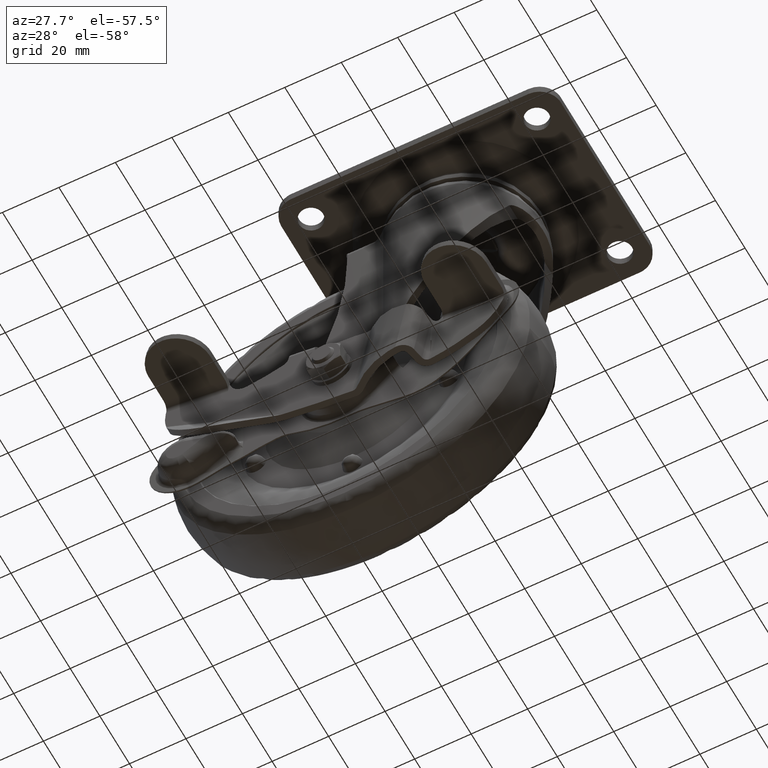
[diagram: clean part render]
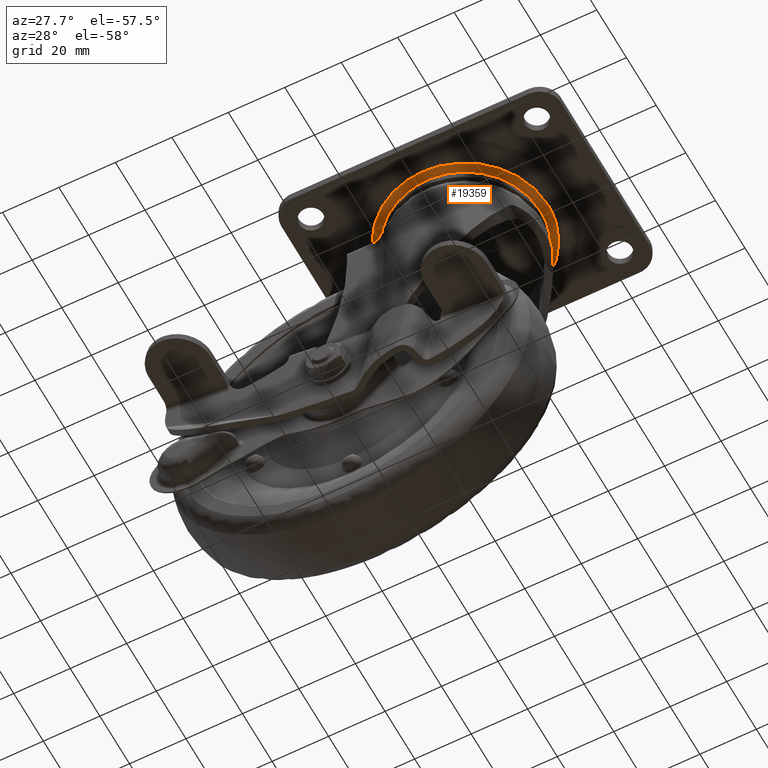
[diagram: same view with one face highlighted and labeled with its STEP entity id]
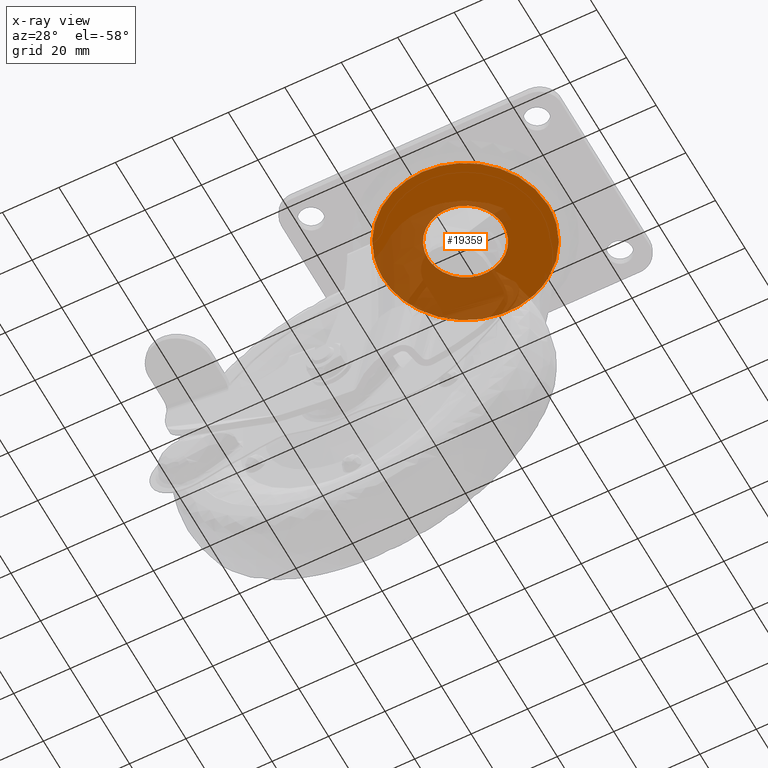
[diagram: x-ray of the same camera — body ghosted, the highlighted face saturated]
A machine part, auxiliary view. The second image highlights one B-rep face of the part: STEP entity #19359.
The next image is the same camera in x-ray: the body ghosted, the highlighted face saturated — about 45% of this face is hidden behind the body in this view.
In plain terms, the highlighted face is a freeform B-spline surface patch.
Its self-contained STEP definition (entity closure, byte-faithful):
#17845=CARTESIAN_POINT('',(-0.814998002985061,-13.325099558920011,-6.373000000000000));
#17846=VERTEX_POINT('',#17845);
#17852=CARTESIAN_POINT('',(-13.350000000000000,0.0,-6.373000000000000));
#17853=VERTEX_POINT('',#17852);
#17854=CARTESIAN_POINT('',(-13.350000000000000,0.0,-6.373000000000000));
#17855=CARTESIAN_POINT('',(-13.350000000000001,-12.558425992823310,-6.372999999999999));
#17856=CARTESIAN_POINT('',(-0.814998002985061,-13.325099558920011,-6.373000000000000));
#17864=(BOUNDED_CURVE()B_SPLINE_CURVE(2,(#17854,#17855,#17856),.UNSPECIFIED.,.F.,.U.)B_SPLINE_CURVE_WITH_KNOTS((3,3),(0.0,0.239332962236925),.UNSPECIFIED.)CURVE()GEOMETRIC_REPRESENTATION_ITEM()RATIONAL_B_SPLINE_CURVE((1.0,0.719603993289074,0.976072041662394))REPRESENTATION_ITEM(''));
#17865=EDGE_CURVE('',#17853,#17846,#17864,.T.);
#17867=CARTESIAN_POINT('',(13.350000000000000,0.0,-6.373000000000000));
#17868=VERTEX_POINT('',#17867);
#17869=CARTESIAN_POINT('',(13.350000000000000,0.0,-6.373000000000000));
#17870=CARTESIAN_POINT('',(13.350000000000000,13.350000000000000,-6.373000000000000));
#17871=CARTESIAN_POINT('',(0.0,13.350000000000000,-6.373000000000000));
#17872=CARTESIAN_POINT('',(-13.350000000000000,13.350000000000000,-6.373000000000000));
#17873=CARTESIAN_POINT('',(-13.350000000000000,0.0,-6.373000000000000));
#17881=(BOUNDED_CURVE()B_SPLINE_CURVE(2,(#17869,#17870,#17871,#17872,#17873),.UNSPECIFIED.,.F.,.U.)B_SPLINE_CURVE_WITH_KNOTS((3,2,3),(0.500000000000000,0.750000000000000,1.0),.UNSPECIFIED.)CURVE()GEOMETRIC_REPRESENTATION_ITEM()RATIONAL_B_SPLINE_CURVE((1.0,0.707106781186548,1.0,0.707106781186548,1.0))REPRESENTATION_ITEM(''));
#17882=EDGE_CURVE('',#17868,#17853,#17881,.T.);
#17884=CARTESIAN_POINT('',(12.497516776657950,-4.694099958155246,-6.372999999999999));
#17885=VERTEX_POINT('',#17884);
#17886=CARTESIAN_POINT('',(12.497516776657953,-4.694099958155246,-6.372999999999999));
#17887=CARTESIAN_POINT('',(13.349999999999998,-2.424458604021889,-6.373000000000000));
#17888=CARTESIAN_POINT('',(13.350000000000000,0.0,-6.373000000000000));
#17896=(BOUNDED_CURVE()B_SPLINE_CURVE(2,(#17886,#17887,#17888),.UNSPECIFIED.,.F.,.U.)B_SPLINE_CURVE_WITH_KNOTS((3,3),(0.440284170898208,0.500000000000000),.UNSPECIFIED.)CURVE()GEOMETRIC_REPRESENTATION_ITEM()RATIONAL_B_SPLINE_CURVE((0.893499554634907,0.930038554401048,1.0))REPRESENTATION_ITEM(''));
#17897=EDGE_CURVE('',#17885,#17868,#17896,.T.);
#17937=CARTESIAN_POINT('',(-0.814998002985061,-13.325099558920016,-6.373000000000001));
#17938=CARTESIAN_POINT('',(-0.407879390231432,-13.349999999999998,-6.373000000000001));
#17939=CARTESIAN_POINT('',(0.0,-13.350000000000000,-6.373000000000000));
#17940=CARTESIAN_POINT('',(9.246338102476596,-13.350000000000007,-6.373000000000000));
#17941=CARTESIAN_POINT('',(12.497516776657950,-4.694099958155247,-6.372999999999999));
#17949=(BOUNDED_CURVE()B_SPLINE_CURVE(2,(#17937,#17938,#17939,#17940,#17941),.UNSPECIFIED.,.F.,.U.)B_SPLINE_CURVE_WITH_KNOTS((3,2,3),(0.239332962236925,0.250000000000000,0.440284170898207),.UNSPECIFIED.)CURVE()GEOMETRIC_REPRESENTATION_ITEM()RATIONAL_B_SPLINE_CURVE((0.976072041662394,0.987502787897474,1.0,0.777068226785500,0.893499554634906))REPRESENTATION_ITEM(''));
#17950=EDGE_CURVE('',#17846,#17885,#17949,.T.);
#19121=CARTESIAN_POINT('',(16.772753542684828,23.990791845047418,-6.373000000000022));
#19122=VERTEX_POINT('',#19121);
#19123=CARTESIAN_POINT('',(29.272570000000002,0.0,-6.373000000000000));
#19124=VERTEX_POINT('',#19123);
#19125=CARTESIAN_POINT('',(16.772753542684836,23.990791845047418,-6.373000000000022));
#19126=CARTESIAN_POINT('',(29.272569999999998,15.251758039832849,-6.373000000000000));
#19127=CARTESIAN_POINT('',(29.272570000000002,0.0,-6.373000000000000));
#19135=(BOUNDED_CURVE()B_SPLINE_CURVE(2,(#19125,#19126,#19127),.UNSPECIFIED.,.F.,.U.)B_SPLINE_CURVE_WITH_KNOTS((3,3),(0.348488271149740,0.500000000000000),.UNSPECIFIED.)CURVE()GEOMETRIC_REPRESENTATION_ITEM()RATIONAL_B_SPLINE_CURVE((0.860141114565794,0.822492968196226,1.0))REPRESENTATION_ITEM(''));
#19136=EDGE_CURVE('',#19122,#19124,#19135,.T.);
#19200=CARTESIAN_POINT('',(-24.910795540483711,15.373211119572391,-6.373000000000023));
#19201=VERTEX_POINT('',#19200);
#19215=CARTESIAN_POINT('',(-29.272570000000002,0.0,-6.373000000000000));
#19216=VERTEX_POINT('',#19215);
#19217=CARTESIAN_POINT('',(-29.272570000000002,0.0,-6.373000000000000));
#19218=CARTESIAN_POINT('',(-29.272570000000002,8.305379226885787,-6.373000000000000));
#19219=CARTESIAN_POINT('',(-24.910795540483715,15.373211119572391,-6.373000000000023));
#19227=(BOUNDED_CURVE()B_SPLINE_CURVE(2,(#19217,#19218,#19219),.UNSPECIFIED.,.F.,.U.)B_SPLINE_CURVE_WITH_KNOTS((3,3),(0.0,0.089762955613961),.UNSPECIFIED.)CURVE()GEOMETRIC_REPRESENTATION_ITEM()RATIONAL_B_SPLINE_CURVE((1.0,0.894836156000071,0.865190851689416))REPRESENTATION_ITEM(''));
#19228=EDGE_CURVE('',#19216,#19201,#19227,.T.);
#19230=CARTESIAN_POINT('',(29.272570000000002,0.0,-6.373000000000000));
#19231=CARTESIAN_POINT('',(29.272570000000005,-29.272570000000005,-6.373000000000000));
#19232=CARTESIAN_POINT('',(0.0,-29.272570000000002,-6.373000000000000));
#19233=CARTESIAN_POINT('',(-29.272570000000005,-29.272570000000005,-6.373000000000000));
#19234=CARTESIAN_POINT('',(-29.272570000000002,0.0,-6.373000000000000));
#19242=(BOUNDED_CURVE()B_SPLINE_CURVE(2,(#19230,#19231,#19232,#19233,#19234),.UNSPECIFIED.,.F.,.U.)B_SPLINE_CURVE_WITH_KNOTS((3,2,3),(0.500000000000000,0.750000000000000,1.0),.UNSPECIFIED.)CURVE()GEOMETRIC_REPRESENTATION_ITEM()RATIONAL_B_SPLINE_CURVE((1.0,0.707106781186548,1.0,0.707106781186548,1.0))REPRESENTATION_ITEM(''));
#19243=EDGE_CURVE('',#19124,#19216,#19242,.T.);
#19271=CARTESIAN_POINT('',(-24.910795540483715,15.373211119572391,-6.373000000000023));
#19272=CARTESIAN_POINT('',(-16.333077569071079,29.272570000000005,-6.373000000000000));
#19273=CARTESIAN_POINT('',(0.0,29.272570000000002,-6.373000000000000));
#19274=CARTESIAN_POINT('',(9.217998735290328,29.272570000000002,-6.373000000000001));
#19275=CARTESIAN_POINT('',(16.772753542684839,23.990791845047415,-6.373000000000022));
#19283=(BOUNDED_CURVE()B_SPLINE_CURVE(2,(#19271,#19272,#19273,#19274,#19275),.UNSPECIFIED.,.F.,.U.)B_SPLINE_CURVE_WITH_KNOTS((3,2,3),(0.089762955613961,0.250000000000000,0.348488271149741),.UNSPECIFIED.)CURVE()GEOMETRIC_REPRESENTATION_ITEM()RATIONAL_B_SPLINE_CURVE((0.865190851689416,0.812270625186476,1.0,0.884613812990322,0.860141114565794))REPRESENTATION_ITEM(''));
#19284=EDGE_CURVE('',#19201,#19122,#19283,.T.);
#19342=CARTESIAN_POINT('',(-32.196899629528168,-32.196772140265388,-6.373000000000000));
#19343=CARTESIAN_POINT('',(32.196901199831181,-32.196772140265388,-6.373000000000000));
#19344=CARTESIAN_POINT('',(-32.196899629528168,32.194221371415317,-6.373000000000000));
#19345=CARTESIAN_POINT('',(32.196901199831181,32.194221371415317,-6.373000000000000));
#19346=B_SPLINE_SURFACE_WITH_KNOTS('',1,1,((#19342,#19344),(#19343,#19345)),.UNSPECIFIED.,.F.,.F.,.U.,(2,2),(2,2),(0.0,64.393800829359350),(0.0,64.390993511680705),.UNSPECIFIED.);
#19347=ORIENTED_EDGE('',*,*,#19136,.T.);
#19348=ORIENTED_EDGE('',*,*,#19243,.T.);
#19349=ORIENTED_EDGE('',*,*,#19228,.T.);
#19350=ORIENTED_EDGE('',*,*,#19284,.T.);
#19351=EDGE_LOOP('',(#19347,#19348,#19349,#19350));
#19352=FACE_OUTER_BOUND('',#19351,.T.);
#19353=ORIENTED_EDGE('',*,*,#17882,.T.);
#19354=ORIENTED_EDGE('',*,*,#17865,.T.);
#19355=ORIENTED_EDGE('',*,*,#17950,.T.);
#19356=ORIENTED_EDGE('',*,*,#17897,.T.);
#19357=EDGE_LOOP('',(#19353,#19354,#19355,#19356));
#19358=FACE_BOUND('',#19357,.T.);
#19359=ADVANCED_FACE('',(#19352,#19358),#19346,.F.);